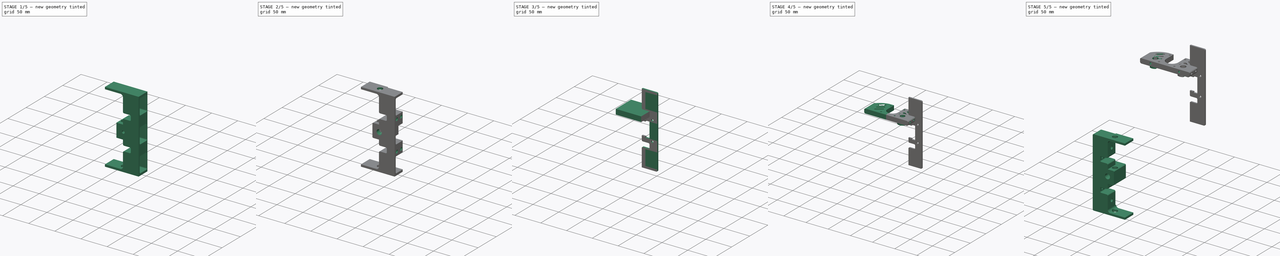
[diagram: build sequence overview — one tinted view per stage of 5, left to right]
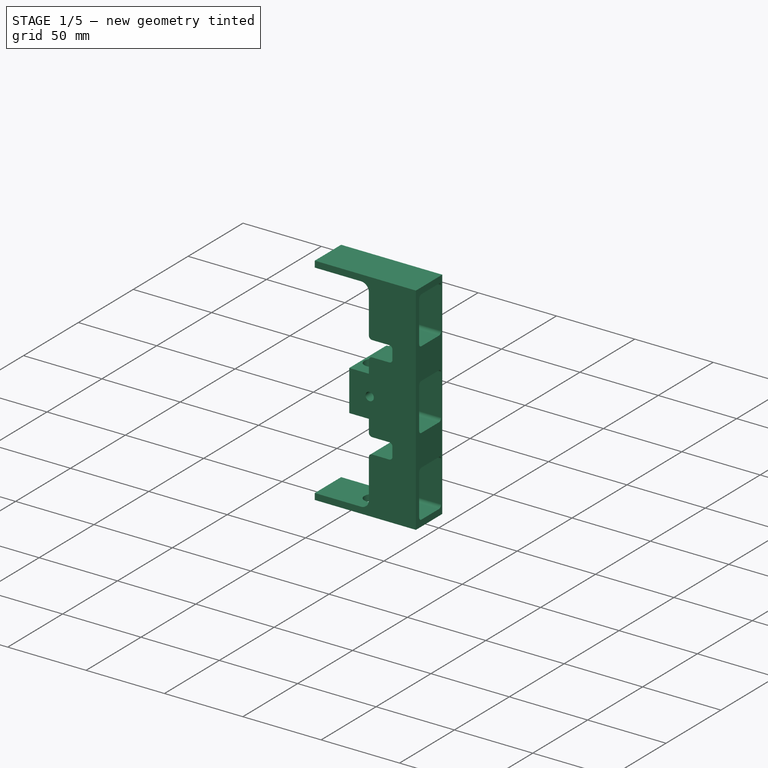
[diagram: stage 1 of 5 — iso view after this stage's code; geometry added in this stage tinted green]
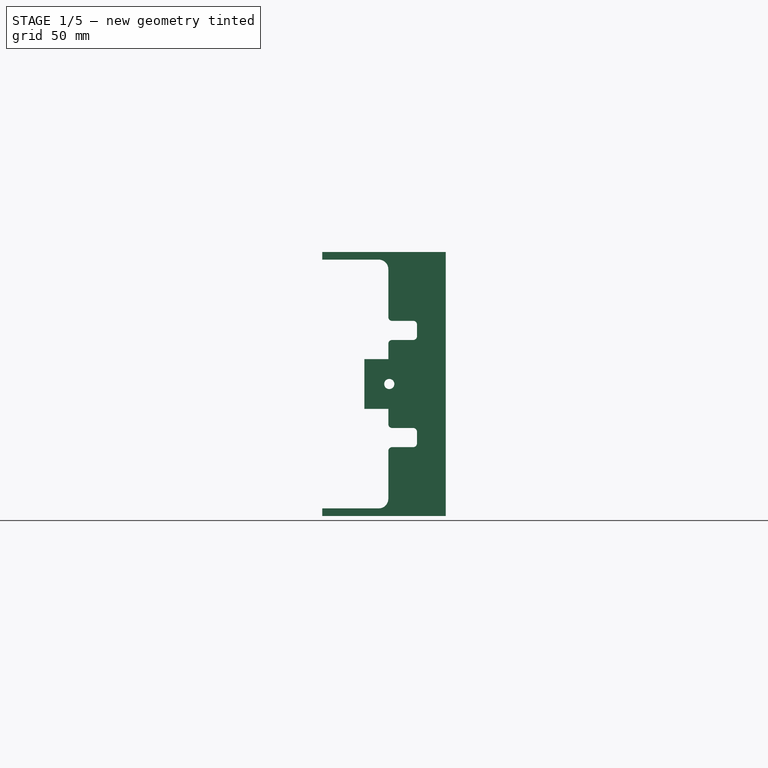
[diagram: stage 1 of 5 — front view after this stage's code; geometry added in this stage tinted green]
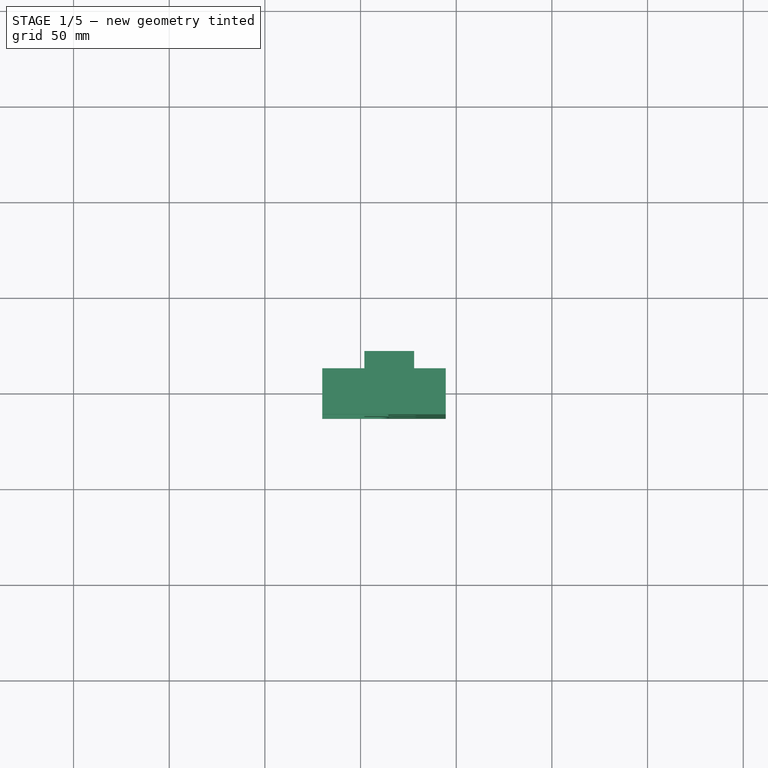
[diagram: stage 1 of 5 — top view after this stage's code; geometry added in this stage tinted green]
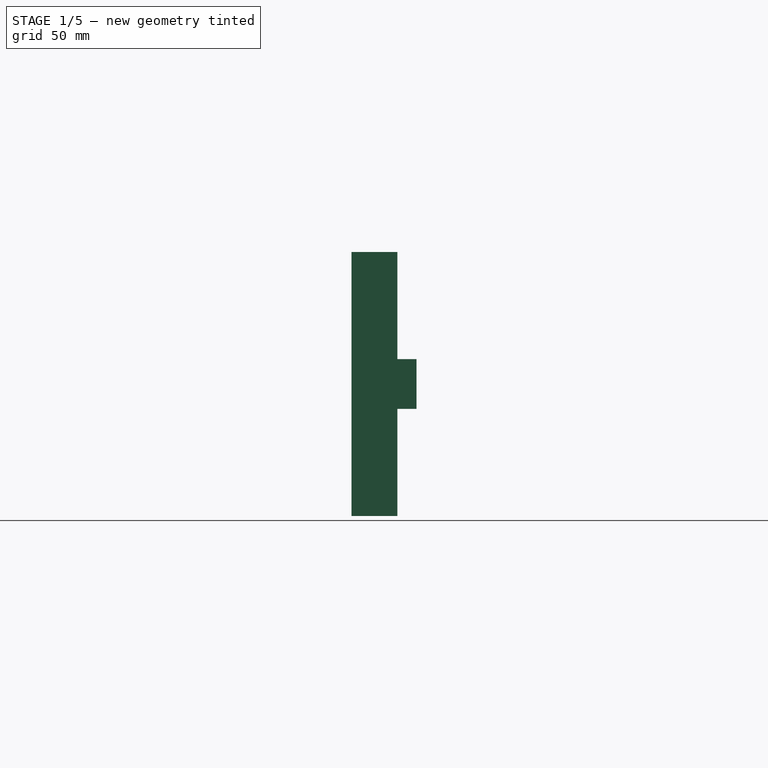
[diagram: stage 1 of 5 — right view after this stage's code; geometry added in this stage tinted green]
FCSTD DOCUMENT  (FreeCAD 0.20R29177 (Git))
Label: AP_004c_LateralWagon
License: All rights reserved
LicenseURL: http://en.wikipedia.org/wiki/All_rights_reserved
objects: Sketcher::SketchObject×22, PartDesign::Pocket×18, PartDesign::Pad×9, PartDesign::Fillet×4, PartDesign::ShapeBinder×4, PartDesign::Mirrored×3, PartDesign::Body×3, PartDesign::Plane×2, PartDesign::Hole×2, PartDesign::SubShapeBinder×1, PartDesign::Chamfer×1, Part::Mirroring×1
note: 104 computed .brp shape members not serialized (recipe doc carries the construction recipe); baked Part::Feature solids carry a one-line shape summary decoded from their .brp

FEATURE [PartDesign::SubShapeBinder] Binder
  BindCopyOnChange = 0
  BindMode = 2
  ClaimChildren = false
  Context = -> Body [Binder.]
  Fuse = false
  MakeFace = true
  OffsetFill = false
  OffsetIntersection = false
  OffsetJoinType = 0
  OffsetOpenResult = false
  PartialLoad = false
  Refine = true
  Relative = true
  _Version = 2
FEATURE [Sketcher::SketchObject] Sketch
  ExternalGeometry = -> [Binder]
  FullyConstrained = false
  MapMode = 5
  Placement = pos=(0,-10,0) rot=(1,0,0;1.5708rad)
  Support = -> [Binder]
  sketch-geometry (1):
    g0: LineSegment StartX=79.991 StartY=228.603 StartZ=0 EndX=79.991 EndY=327.275 EndZ=0
  constraints (1):
    c: Symmetric(g-6,g-3,g0)
FEATURE [PartDesign::Plane] DatumPlane
  AttachmentOffset = pos=(0,0,0) rot=(0,1,0;1.5708rad)
  Length = 396.166
  MapMode = 45
  Placement = pos=(79.991,-10,277.939) rot=(0,1,0;1.5708rad)
  ResizeMode = 0
  Support = -> [Sketch]
  Width = 77.1662
FEATURE [Sketcher::SketchObject] Sketch001
  AttachmentOffset = pos=(0,0,3) rot=(0,0,1;0rad)
  ExternalGeometry = -> [Binder]
  FullyConstrained = true
  MapMode = 5
  Placement = pos=(0,-13,7e-16) rot=(1,0,0;1.5708rad)
  Support = -> [Binder]
  sketch-geometry (9):
    g0: LineSegment StartX=114.5 StartY=344 StartZ=0 EndX=144.5 EndY=344 EndZ=0
    g1: LineSegment StartX=144.5 StartY=344 StartZ=0 EndX=144.5 EndY=206 EndZ=0
    g2: LineSegment StartX=144.5 StartY=206 StartZ=0 EndX=114.5 EndY=206 EndZ=0
    g3: LineSegment StartX=114.5 StartY=206 StartZ=0 EndX=114.5 EndY=262 EndZ=0
    g4: LineSegment StartX=114.5 StartY=288 StartZ=0 EndX=102 EndY=288 EndZ=0
    g5: LineSegment StartX=102 StartY=288 StartZ=0 EndX=102 EndY=262 EndZ=0
    g6: LineSegment StartX=102 StartY=262 StartZ=0 EndX=114.5 EndY=262 EndZ=0
    g7: LineSegment StartX=114.5 StartY=288 StartZ=0 EndX=114.5 EndY=344 EndZ=0
    g8: Circle CenterX=115 CenterY=275 CenterZ=0 NormalX=0 NormalY=0 NormalZ=1 AngleXU=0 Radius=2.65
  constraints (26):
    c: Coincident(g0,g1)
    c: Coincident(g1,g2)
    c: Coincident(g2,g3)
    c: Coincident(g7,g0)
    c: Horizontal(g0)
    c: Horizontal(g2)
    c: Vertical(g1)
    c: Vertical(g3)
    c: Vertical(g-3,g0)
    c: DistanceY(g2,g-5) = 4
    c: DistanceY(g-6,g0) = 4
    c: DistanceX(g0,g0) = 30
    c: Coincident(g4,g5)
    c: Coincident(g5,g6)
    c: Horizontal(g4)
    c: Horizontal(g6)
    c: Vertical(g5)
    c: Distance(g-7,g5) = 3
    c: Distance(g-8,g4) = 3
    c: Distance(g-9,g6) = 3
    c: Coincident(g7,g4)
    c: Vertical(g7)
    c: Coincident(g6,g3)
    c: Equal(g2,g0)
    c: Coincident(g8,g-11)
    c: Radius(g8) = 2.65
FEATURE [PartDesign::Pad] Pad
  Direction = (0,-1,2e-16)
  Length = 24
  Length2 = 100
  Profile = -> Sketch001
  Reversed = true
  Type = 0
FEATURE [Sketcher::SketchObject] Sketch002
  ExternalGeometry = -> [DatumPlane,Binder,Pad]
  FullyConstrained = true
  MapMode = 5
  Placement = pos=(0,-13,2.9e-15) rot=(1,0,0;1.5708rad)
  Support = -> [Pad]
  sketch-geometry (8):
    g0: LineSegment StartX=114.5 StartY=344 StartZ=0 EndX=79.991 EndY=344 EndZ=0
    g1: LineSegment StartX=79.991 StartY=344 StartZ=0 EndX=79.991 EndY=340 EndZ=0
    g2: LineSegment StartX=79.991 StartY=340 StartZ=0 EndX=114.5 EndY=340 EndZ=0
    g3: LineSegment StartX=114.5 StartY=340 StartZ=0 EndX=114.5 EndY=344 EndZ=0
    g4: LineSegment StartX=114.5 StartY=206 StartZ=0 EndX=79.991 EndY=206 EndZ=0
    g5: LineSegment StartX=79.991 StartY=206 StartZ=0 EndX=79.991 EndY=210 EndZ=0
    g6: LineSegment StartX=79.991 StartY=210 StartZ=0 EndX=114.5 EndY=210 EndZ=0
    g7: LineSegment StartX=114.5 StartY=210 StartZ=0 EndX=114.5 EndY=206 EndZ=0
  constraints (22):
    c: Coincident(g0,g1)
    c: Coincident(g1,g2)
    c: Coincident(g2,g3)
    c: Coincident(g3,g0)
    c: Horizontal(g0)
    c: Horizontal(g2)
    c: Vertical(g1)
    c: Vertical(g3)
    c: Coincident(g0,g-6)
    c: PointOnObject(g1,g-4)
    c: PointOnObject(g1,g-3)
    c: Coincident(g4,g5)
    c: Coincident(g5,g6)
    c: Coincident(g6,g7)
    c: Coincident(g7,g4)
    c: Horizontal(g4)
    c: Horizontal(g6)
    c: Vertical(g5)
    c: Vertical(g7)
    c: Coincident(g4,g-8)
    c: PointOnObject(g5,g-7)
    c: PointOnObject(g5,g-3)
FEATURE [PartDesign::Pad] Pad001
  BaseFeature = -> Pad
  Direction = (0,-1,2e-16)
  Length = 24
  Length2 = 100
  Profile = -> Sketch002
  Reversed = true
  Type = 0
FEATURE [Sketcher::SketchObject] Sketch003
  ExternalGeometry = -> [Binder,DatumPlane,Pad001]
  FullyConstrained = true
  MapMode = 5
  Placement = pos=(0,-13,2.9e-15) rot=(1,0,0;1.5708rad)
  Support = -> [Pad001]
  sketch-geometry (8):
    g0: LineSegment StartX=79.991 StartY=242 StartZ=0 EndX=129.5 EndY=242 EndZ=0
    g1: LineSegment StartX=129.5 StartY=242 StartZ=0 EndX=129.5 EndY=252 EndZ=0
    g2: LineSegment StartX=129.5 StartY=252 StartZ=0 EndX=79.991 EndY=252 EndZ=0
    g3: LineSegment StartX=79.991 StartY=252 StartZ=0 EndX=79.991 EndY=242 EndZ=0
    g4: LineSegment StartX=79.991 StartY=308 StartZ=0 EndX=129.5 EndY=308 EndZ=0
    g5: LineSegment StartX=129.5 StartY=308 StartZ=0 EndX=129.5 EndY=298 EndZ=0
    g6: LineSegment StartX=129.5 StartY=298 StartZ=0 EndX=79.991 EndY=298 EndZ=0
    g7: LineSegment StartX=79.991 StartY=298 StartZ=0 EndX=79.991 EndY=308 EndZ=0
  constraints (24):
    c: Coincident(g0,g1)
    c: Coincident(g1,g2)
    c: Coincident(g2,g3)
    c: Coincident(g3,g0)
    c: Horizontal(g0)
    c: Horizontal(g2)
    c: Vertical(g1)
    c: Vertical(g3)
    c: PointOnObject(g0,g-5)
    c: Coincident(g4,g5)
    c: Coincident(g5,g6)
    c: Coincident(g6,g7)
    c: Coincident(g7,g4)
    c: Horizontal(g4)
    c: Horizontal(g6)
    c: Vertical(g5)
    c: Vertical(g7)
    c: PointOnObject(g4,g-3)
    c: PointOnObject(g4,g3)
    c: Equal(g3,g7)
    c: DistanceY(g5,g5) = 10
    c: PointOnObject(g0,g-4)
    c: Vertical(g0,g5)
    c: DistanceX(g-7,g5) = 15
FEATURE [PartDesign::Pocket] Pocket
  BaseFeature = -> Pad001
  Direction = (1,1,1)
  Length = 5
  Length2 = 100
  Profile = -> Sketch003
  Type = 1
FEATURE [PartDesign::Pocket] Pocket001
  BaseFeature = -> Pocket
  Direction = (1,1,1)
  Length = 5
  Length2 = 100
  Profile = -> Binder [Face11,Face19,Face8]
  Type = 1
FEATURE [PartDesign::Fillet] Fillet
  Base = -> Pocket001 [Edge48,Edge47,Edge46,Edge45,Edge2,Edge24,Edge86,Edge85]
  BaseFeature = -> Pocket001
  Radius = 2
  SupportTransform = false
  UseAllEdges = false
FEATURE [PartDesign::Fillet] Fillet001
  Base = -> Fillet [Edge71,Edge107]
  BaseFeature = -> Fillet
  Radius = 5
  SupportTransform = false
  UseAllEdges = false
FEATURE [Sketcher::SketchObject] Sketch004
  ExternalGeometry = -> [Fillet001]
  FullyConstrained = true
  MapMode = 5
  Placement = pos=(0,11,-2.4e-15) rot=(0,0.707107,0.707107;3.14159rad)
  Support = -> [Fillet001]
  sketch-geometry (5):
    g0: LineSegment StartX=-102 StartY=262 StartZ=0 EndX=-128 EndY=262 EndZ=0
    g1: LineSegment StartX=-128 StartY=262 StartZ=0 EndX=-128 EndY=288 EndZ=0
    g2: LineSegment StartX=-128 StartY=288 StartZ=0 EndX=-102 EndY=288 EndZ=0
    g3: LineSegment StartX=-102 StartY=288 StartZ=0 EndX=-102 EndY=262 EndZ=0
    g4: Circle CenterX=-115 CenterY=275 CenterZ=0 NormalX=0 NormalY=0 NormalZ=1 AngleXU=0 Radius=2.65
  constraints (12):
    c: Coincident(g0,g1)
    c: Coincident(g1,g2)
    c: Coincident(g2,g3)
    c: Coincident(g3,g0)
    c: Horizontal(g0)
    c: Horizontal(g2)
    c: Vertical(g1)
    c: Coincident(g0,g-3)
    c: Coincident(g2,g-3)
    c: Equal(g2,g1)
    c: Coincident(g4,g-4)
    c: Equal(g-4,g4)
FEATURE [PartDesign::Pad] Pad002
  BaseFeature = -> Fillet001
  Direction = (0,1,-2e-16)
  Length = 10
  Length2 = 100
  Profile = -> Sketch004
  Type = 0
FEATURE [Sketcher::SketchObject] Sketch005
  ExternalGeometry = -> [Pad002]
  FullyConstrained = true
  MapMode = 5
  Placement = pos=(0,6.34e-14,288) rot=(0,0,1;0rad)
  Support = -> [Pad002]
  sketch-geometry (1):
    g0: Circle CenterX=108.25 CenterY=-1 CenterZ=0 NormalX=0 NormalY=0 NormalZ=1 AngleXU=0 Radius=5
  constraints (2):
    c: Symmetric(g-3,g-4,g0)
    c: Radius(g0) = 5
FEATURE [PartDesign::Pocket] Pocket002
  BaseFeature = -> Pad002
  Direction = (1,1,1)
  Length = 5
  Length2 = 100
  Profile = -> Sketch005
  Type = 1
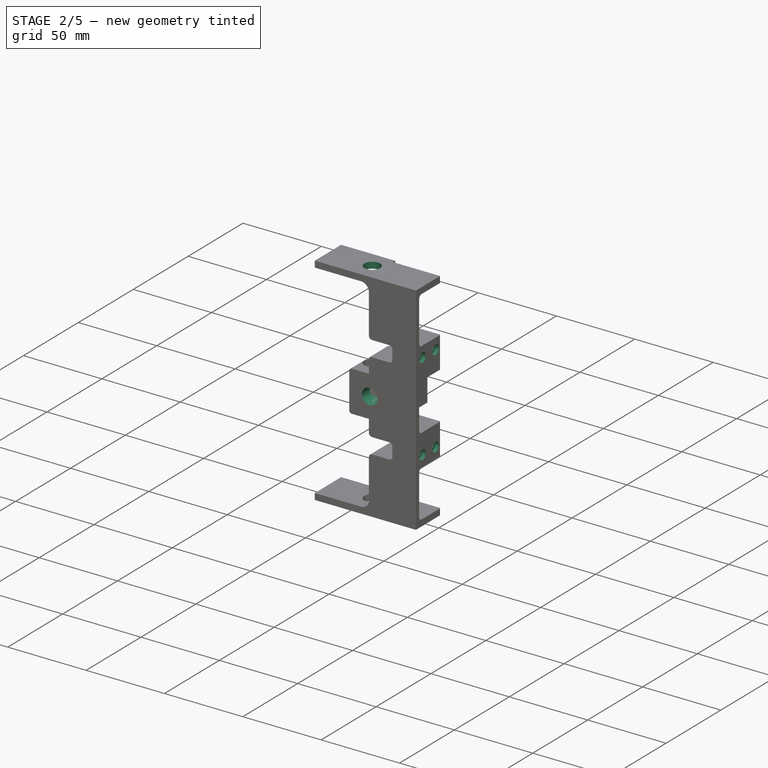
[diagram: stage 2 of 5 — iso view after this stage's code; geometry added in this stage tinted green]
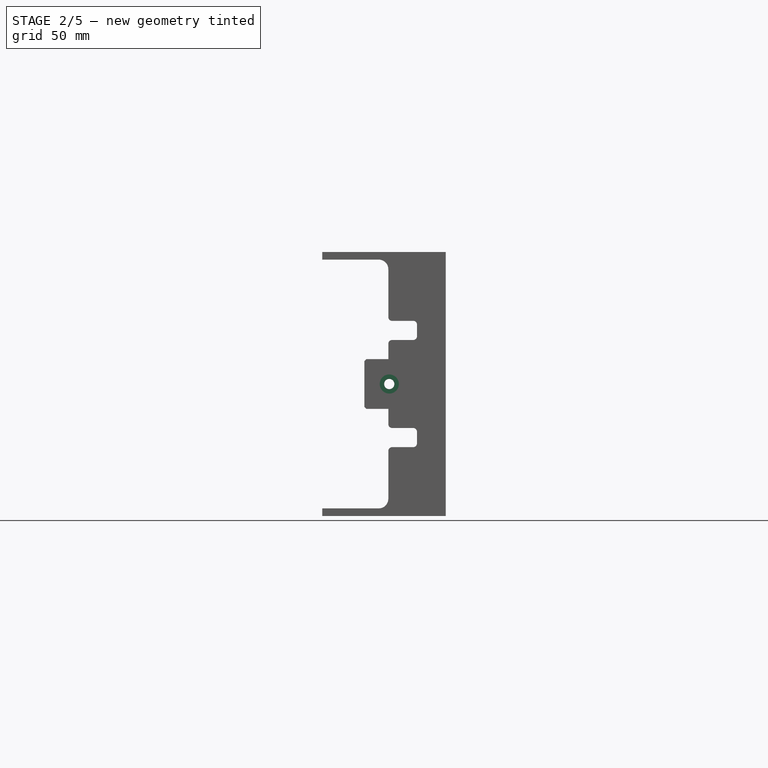
[diagram: stage 2 of 5 — front view after this stage's code; geometry added in this stage tinted green]
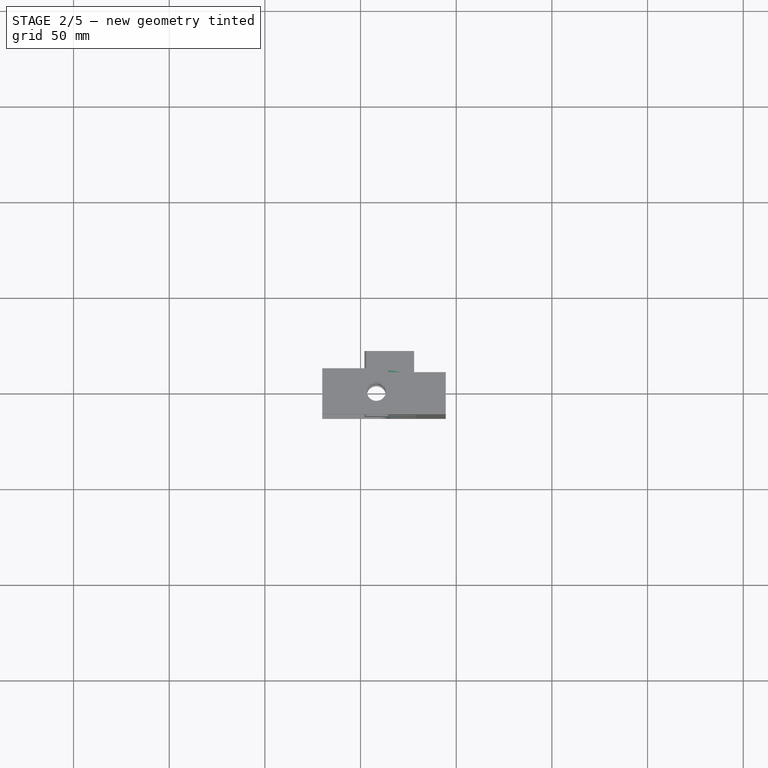
[diagram: stage 2 of 5 — top view after this stage's code; geometry added in this stage tinted green]
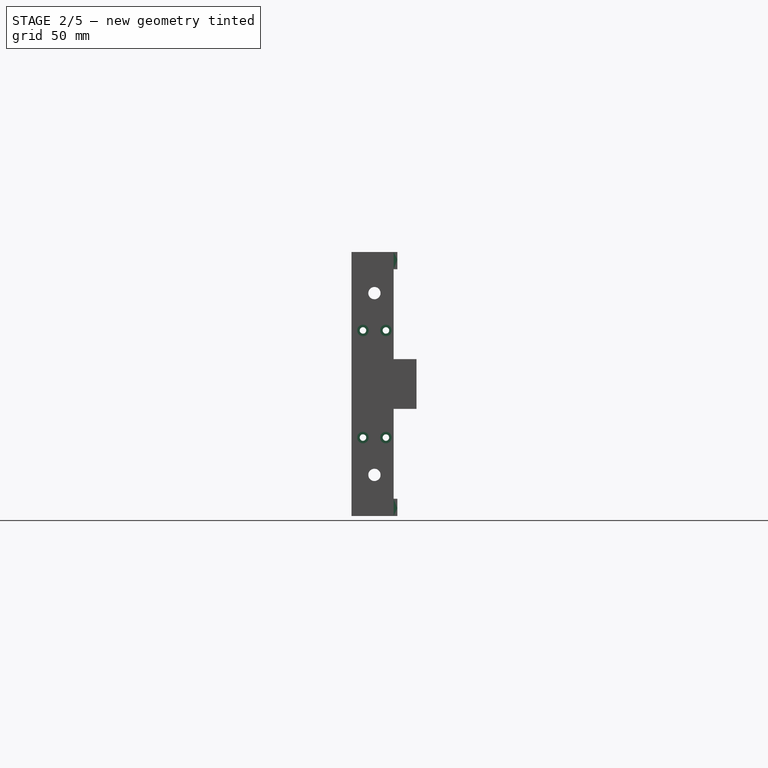
[diagram: stage 2 of 5 — right view after this stage's code; geometry added in this stage tinted green]
FEATURE [PartDesign::Pocket] Pocket003
  BaseFeature = -> Pocket002
  Direction = (1,1,1)
  Length = 5
  Length2 = 100
  Profile = -> Sketch005
  Reversed = true
  Type = 1
FEATURE [Sketcher::SketchObject] Sketch006
  ExternalGeometry = -> [Pocket003]
  FullyConstrained = false
  MapMode = 5
  Placement = pos=(0,-13,2.9e-15) rot=(1,0,0;1.5708rad)
  Support = -> [Pocket003]
  sketch-geometry (1):
    g0: Circle CenterX=115 CenterY=275 CenterZ=0 NormalX=0 NormalY=0 NormalZ=1 AngleXU=0 Radius=3.77396
  constraints (1):
    c: Coincident(g0,g-3)
FEATURE [PartDesign::Hole] Hole
  BaseFeature = -> Pocket003
  CustomThreadClearance = 0
  Depth = 25
  DepthType = 0
  Diameter = 5.5
  DrillForDepth = false
  DrillPoint = 1
  DrillPointAngle = 118
  HoleCutCountersinkAngle = 90
  HoleCutCustomValues = false
  HoleCutDepth = 4
  HoleCutDiameter = 10
  HoleCutType = 6
  ModelThread = false
  Profile = -> Sketch006
  Tapered = false
  TaperedAngle = 90
  ThreadClass = 0
  ThreadDepth = 23.5
  ThreadDepthType = 0
  ThreadDirection = 0
  ThreadFit = 0
  ThreadSize = 13
  ThreadType = 1
  Threaded = false
  UseCustomThreadClearance = false
FEATURE [PartDesign::Pocket] Pocket004
  BaseFeature = -> Hole
  Direction = (1,1,1)
  Length = 19
  Length2 = 100
  Profile = -> Hole [Face66]
  Type = 0
FEATURE [Sketcher::SketchObject] Sketch007
  ExternalGeometry = -> [Pocket004]
  FullyConstrained = true
  MapMode = 5
  Placement = pos=(114.5,0,0) rot=(0.57735,-0.57735,-0.57735;2.0944rad)
  Support = -> [Pocket004]
  sketch-geometry (2):
    g0: Circle CenterX=1 CenterY=322.5 CenterZ=0 NormalX=0 NormalY=0 NormalZ=1 AngleXU=0 Radius=3.2
    g1: Circle CenterX=1 CenterY=227.5 CenterZ=0 NormalX=0 NormalY=0 NormalZ=1 AngleXU=0 Radius=3.2
  constraints (4):
    c: Equal(g1,g0)
    c: Radius(g0) = 3.2
    c: Symmetric(g-3,g-4,g0)
    c: Symmetric(g-5,g-6,g1)
FEATURE [PartDesign::Pocket] Pocket005
  BaseFeature = -> Pocket004
  Direction = (1,1,1)
  Length = 5
  Length2 = 100
  Profile = -> Sketch007
  Type = 1
FEATURE [Sketcher::SketchObject] Sketch008
  ExternalGeometry = -> [Pocket005]
  FullyConstrained = false
  MapMode = 5
  Placement = pos=(144.5,0,0) rot=(0.57735,0.57735,0.57735;2.0944rad)
  Support = -> [Pocket005]
  sketch-geometry (6):
    g0: Circle CenterX=-7 CenterY=303 CenterZ=0 NormalX=0 NormalY=0 NormalZ=1 AngleXU=0 Radius=1.66566
    g1: Circle CenterX=5 CenterY=303 CenterZ=0 NormalX=0 NormalY=0 NormalZ=1 AngleXU=0 Radius=1.31518
    g2: Circle CenterX=-7 CenterY=247 CenterZ=0 NormalX=0 NormalY=0 NormalZ=1 AngleXU=0 Radius=1.65536
    g3: Circle CenterX=5 CenterY=247 CenterZ=0 NormalX=0 NormalY=0 NormalZ=1 AngleXU=0 Radius=1.87374
    g4: GeomPoint X=-1 Y=303 Z=0
    g5: GeomPoint X=-1 Y=247 Z=0
  constraints (9):
    c: Symmetric(g-5,g-6,g4)
    c: Symmetric(g0,g1,g4)
    c: Horizontal(g0,g1)
    c: DistanceX(g0,g1) = 12
    c: Vertical(g2,g0)
    c: Vertical(g3,g1)
    c: Symmetric(g-3,g-4,g5)
    c: Horizontal(g2,g3)
    c: Horizontal(g3,g5)
FEATURE [PartDesign::Hole] Hole001
  BaseFeature = -> Pocket005
  CustomThreadClearance = 0
  Depth = 25
  DepthType = 0
  Diameter = 3.4
  DrillForDepth = false
  DrillPoint = 1
  DrillPointAngle = 118
  HoleCutCountersinkAngle = 90
  HoleCutCustomValues = false
  HoleCutDepth = 2.4
  HoleCutDiameter = 6
  HoleCutType = 6
  ModelThread = false
  Profile = -> Sketch008
  Tapered = false
  TaperedAngle = 90
  ThreadClass = 0
  ThreadDepth = 23.5
  ThreadDepthType = 0
  ThreadDirection = 0
  ThreadFit = 0
  ThreadSize = 9
  ThreadType = 1
  Threaded = false
  UseCustomThreadClearance = false
FEATURE [PartDesign::Chamfer] Chamfer
  Angle = 45
  Base = -> Hole001 [Edge106,Edge101]
  BaseFeature = -> Hole001
  ChamferType = 0
  FlipDirection = false
  Size = 1
  Size2 = 1
  SupportTransform = false
  UseAllEdges = false
FEATURE [PartDesign::Pocket] Pocket006
  BaseFeature = -> Chamfer
  Direction = (1,1,1)
  Length = 2
  Length2 = 100
  Profile = -> Chamfer [Face34]
  Type = 0
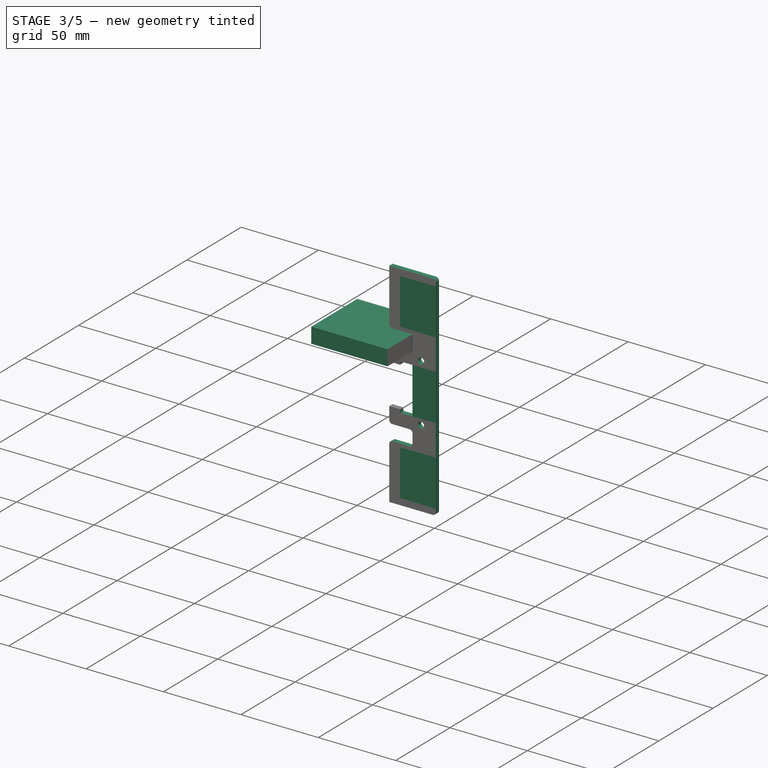
[diagram: stage 3 of 5 — iso view after this stage's code; geometry added in this stage tinted green]
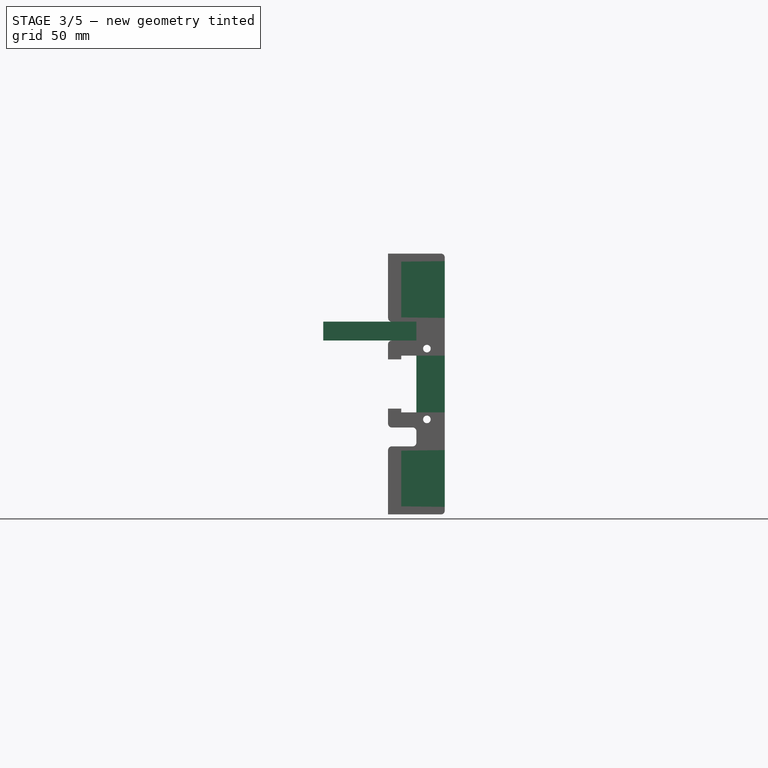
[diagram: stage 3 of 5 — front view after this stage's code; geometry added in this stage tinted green]
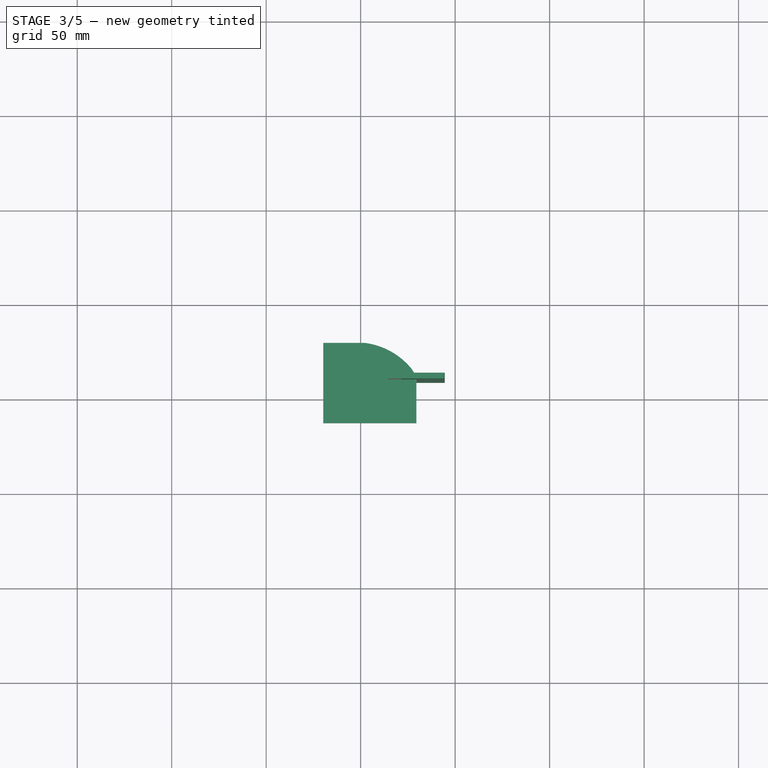
[diagram: stage 3 of 5 — top view after this stage's code; geometry added in this stage tinted green]
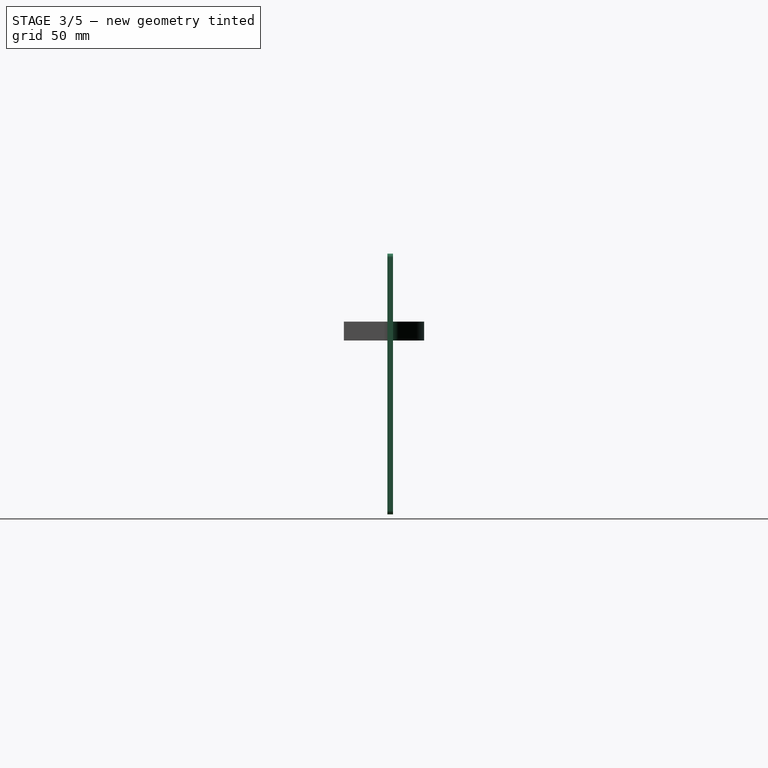
[diagram: stage 3 of 5 — right view after this stage's code; geometry added in this stage tinted green]
FEATURE [PartDesign::Fillet] Fillet002
  Base = -> Pocket006 [Edge121,Edge92]
  BaseFeature = -> Pocket006
  Radius = 2
  SupportTransform = false
  UseAllEdges = false
FEATURE [Sketcher::SketchObject] Sketch009
  ExternalGeometry = -> [Fillet002]
  FullyConstrained = false
  MapMode = 5
  Placement = pos=(0,9,-2e-15) rot=(0,0.707107,0.707107;3.14159rad)
  Support = -> [Fillet002]
  sketch-geometry (2):
    g0: Circle CenterX=-135.057 CenterY=256.268 CenterZ=0 NormalX=0 NormalY=0 NormalZ=1 AngleXU=0 Radius=2
    g1: Circle CenterX=-135.057 CenterY=293.732 CenterZ=0 NormalX=0 NormalY=0 NormalZ=1 AngleXU=0 Radius=2
  constraints (5):
    c: Vertical(g1,g0)
    c: Distance(g1,g-3) = 4
    c: Distance(g0,g-4) = 4
    c: Equal(g0,g1)
    c: Radius(g0) = 2
FEATURE [PartDesign::Pocket] Pocket007
  BaseFeature = -> Fillet002
  Direction = (1,1,1)
  Length = 8
  Length2 = 100
  Profile = -> Sketch009
  Type = 0
FEATURE [PartDesign::ShapeBinder] ShapeBinder
  Support = -> [Binder]
  TraceSupport = false
FEATURE [PartDesign::ShapeBinder] ShapeBinder002
  Support = -> [Pocket007]
  TraceSupport = false
FEATURE [Sketcher::SketchObject] Sketch010
  ExternalGeometry = -> [ShapeBinder002,ShapeBinder]
  FullyConstrained = false
  MapMode = 5
  Placement = pos=(0,0,308) rot=(1,0,0;3.14159rad)
  Support = -> [ShapeBinder]
  sketch-geometry (6):
    g0: LineSegment StartX=80.2048 StartY=-28.418 StartZ=0 EndX=80.2048 EndY=14 EndZ=0
    g1: LineSegment StartX=80.2048 StartY=14 StartZ=0 EndX=129.5 EndY=14 EndZ=0
    g2: LineSegment StartX=129.5 StartY=14 StartZ=0 EndX=129.5 EndY=-7.03123 EndZ=0
    g3: LineSegment StartX=80.2048 StartY=-28.418 StartZ=0 EndX=102.009 EndY=-28.418 EndZ=0
    g4: ArcOfCircle CenterX=97.4158 CenterY=9.44444 CenterZ=0 NormalX=0 NormalY=0 NormalZ=1 AngleXU=0 Radius=38.14 StartAngle=4.83311 EndAngle=5.57872
    g5: ArcOfCircle CenterX=116.8 CenterY=-7.03123 CenterZ=0 NormalX=0 NormalY=0 NormalZ=1 AngleXU=0 Radius=12.7 StartAngle=5.57872 EndAngle=6.28319
  constraints (15):
    c: PointOnObject(g0,g-8)
    c: PointOnObject(g0,g-9)
    c: Vertical(g0)
    c: Horizontal(g1)
    c: Coincident(g1,g2)
    c: Vertical(g2)
    c: Coincident(g0,g1)
    c: Vertical(g2,g-3)
    c: Coincident(g3,g0)
    c: Horizontal(g3)
    c: Coincident(g4,g3)
    c: Tangent(g4,g5) = -1.5708
    c: Tangent(g2,g5) = 1.5708
    c: Radius(g4) = 38.14
    c: Radius(g5) = 12.7
FEATURE [PartDesign::Pad] Pad003
  Direction = (0,0,-1)
  Length = 10
  Length2 = 100
  Profile = -> Sketch010
  Type = 0
FEATURE [Sketcher::SketchObject] Sketch015
  ExternalGeometry = -> [Pocket007]
  FullyConstrained = true
  MapMode = 5
  Placement = pos=(121.5,0,0) rot=(0.57735,0.57735,0.57735;2.0944rad)
  Support = -> [Pocket007]
  sketch-geometry (30):
    g0: ArcOfCircle CenterX=8 CenterY=312 CenterZ=0 NormalX=0 NormalY=0 NormalZ=1 AngleXU=0 Radius=2.25 StartAngle=4.71239 EndAngle=6.28319
    g1: LineSegment StartX=8 StartY=309.75 StartZ=0 EndX=-8 EndY=309.75 EndZ=0
    g2: ArcOfCircle CenterX=-8 CenterY=312 CenterZ=0 NormalX=0 NormalY=0 NormalZ=1 AngleXU=0 Radius=2.25 StartAngle=3.14159 EndAngle=4.71239
    g3: LineSegment StartX=-10.25 StartY=312 StartZ=0 EndX=-10.25 EndY=338 EndZ=0
    g4: ArcOfCircle CenterX=-8 CenterY=338 CenterZ=0 NormalX=0 NormalY=0 NormalZ=1 AngleXU=0 Radius=2.25 StartAngle=1.5708 EndAngle=3.14159
    g5: LineSegment StartX=-8 StartY=340.25 StartZ=0 EndX=8 EndY=340.25 EndZ=0
    g6: ArcOfCircle CenterX=8 CenterY=338 CenterZ=0 NormalX=0 NormalY=0 NormalZ=1 AngleXU=0 Radius=2.25 StartAngle=-4.4e-15 EndAngle=1.5708
    g7: LineSegment StartX=10.25 StartY=338 StartZ=0 EndX=10.25 EndY=312 EndZ=0
    g8: GeomPoint X=10.25 Y=309.75 Z=0
    g9: GeomPoint X=-10.25 Y=340.25 Z=0
    g10: ArcOfCircle CenterX=-8 CenterY=288 CenterZ=0 NormalX=0 NormalY=0 NormalZ=1 AngleXU=0 Radius=2.25 StartAngle=1.5708 EndAngle=3.14159
    g11: LineSegment StartX=-8 StartY=290.25 StartZ=0 EndX=8 EndY=290.25 EndZ=0
    g12: ArcOfCircle CenterX=8 CenterY=288 CenterZ=0 NormalX=0 NormalY=0 NormalZ=1 AngleXU=0 Radius=2.25 StartAngle=-1.8e-15 EndAngle=1.5708
    g13: LineSegment StartX=10.25 StartY=288 StartZ=0 EndX=10.25 EndY=262 EndZ=0
    g14: ArcOfCircle CenterX=8 CenterY=262 CenterZ=0 NormalX=0 NormalY=0 NormalZ=1 AngleXU=0 Radius=2.25 StartAngle=4.71239 EndAngle=6.28319
    g15: LineSegment StartX=8 StartY=259.75 StartZ=0 EndX=-8 EndY=259.75 EndZ=0
    g16: ArcOfCircle CenterX=-8 CenterY=262 CenterZ=0 NormalX=0 NormalY=0 NormalZ=1 AngleXU=0 Radius=2.25 StartAngle=3.14159 EndAngle=4.71239
    g17: LineSegment StartX=-10.25 StartY=262 StartZ=0 EndX=-10.25 EndY=288 EndZ=0
    g18: GeomPoint X=-10.25 Y=290.25 Z=0
    g19: GeomPoint X=10.25 Y=259.75 Z=0
    g20: ArcOfCircle CenterX=-8 CenterY=238 CenterZ=0 NormalX=0 NormalY=0 NormalZ=1 AngleXU=0 Radius=2.25 StartAngle=1.5708 EndAngle=3.14159
    g21: LineSegment StartX=-8 StartY=240.25 StartZ=0 EndX=8 EndY=240.25 EndZ=0
    g22: ArcOfCircle CenterX=8 CenterY=238 CenterZ=0 NormalX=0 NormalY=0 NormalZ=1 AngleXU=0 Radius=2.25 StartAngle=-6.2e-15 EndAngle=1.5708
    g23: LineSegment StartX=10.25 StartY=238 StartZ=0 EndX=10.25 EndY=212 EndZ=0
    g24: ArcOfCircle CenterX=8 CenterY=212 CenterZ=0 NormalX=0 NormalY=0 NormalZ=1 AngleXU=0 Radius=2.25 StartAngle=4.71239 EndAngle=6.28319
    g25: LineSegment StartX=8 StartY=209.75 StartZ=0 EndX=-8 EndY=209.75 EndZ=0
    g26: ArcOfCircle CenterX=-8 CenterY=212 CenterZ=0 NormalX=0 NormalY=0 NormalZ=1 AngleXU=0 Radius=2.25 StartAngle=3.14159 EndAngle=4.71239
    g27: LineSegment StartX=-10.25 StartY=212 StartZ=0 EndX=-10.25 EndY=238 EndZ=0
    g28: GeomPoint X=-10.25 Y=240.25 Z=0
    g29: GeomPoint X=10.25 Y=209.75 Z=0
  constraints (71):
    c: Tangent(g0,g1) = 1.5708
    c: Tangent(g1,g2) = 1.5708
    c: Tangent(g2,g3) = 1.5708
    c: Tangent(g3,g4) = 1.5708
    c: Tangent(g4,g5) = 1.5708
    c: Tangent(g5,g6) = 1.5708
    c: Tangent(g6,g7) = 1.5708
    c: Tangent(g7,g0) = 1.5708
    c: Horizontal(g1)
    c: Horizontal(g5)
    c: Vertical(g3)
    c: Vertical(g7)
    c: Equal(g0,g2)
    c: Equal(g2,g4)
    c: Equal(g4,g6)
    c: PointOnObject(g8,g1)
    c: PointOnObject(g8,g7)
    c: PointOnObject(g9,g3)
    c: PointOnObject(g9,g5)
    c: Coincident(g2,g-11)
    c: Distance(g-11,g1) = 0.25
    c: Distance(g-12,g5) = 0.25
    c: Vertical(g-12,g5)
    c: Tangent(g10,g11) = 1.5708
    c: Tangent(g11,g12) = 1.5708
    c: Tangent(g12,g13) = 1.5708
    c: Tangent(g13,g14) = 1.5708
    c: Tangent(g14,g15) = 1.5708
    c: Tangent(g15,g16) = 1.5708
    c: Tangent(g16,g17) = 1.5708
    c: Tangent(g17,g10) = 1.5708
    c: Horizontal(g11)
    c: Horizontal(g15)
    c: Vertical(g13)
    c: Vertical(g17)
    c: Equal(g10,g12)
    c: Equal(g12,g14)
    c: Equal(g14,g16)
    c: PointOnObject(g18,g11)
    c: PointOnObject(g18,g17)
    c: PointOnObject(g19,g13)
    c: PointOnObject(g19,g15)
    c: Distance(g10,g-5) = 0.25
    c: Vertical(g10,g-5)
    c: Horizontal(g10,g-7)
    c: Distance(g-6,g15) = 0.25
    c: Vertical(g12,g-5)
    c: Tangent(g20,g21) = 1.5708
    c: Tangent(g21,g22) = 1.5708
    c: Tangent(g22,g23) = 1.5708
    c: Tangent(g23,g24) = 1.5708
    c: Tangent(g24,g25) = 1.5708
    c: Tangent(g25,g26) = 1.5708
    c: Tangent(g26,g27) = 1.5708
    c: Tangent(g27,g20) = 1.5708
    c: Horizontal(g21)
    c: Horizontal(g25)
    c: Vertical(g23)
    c: Vertical(g27)
    c: Equal(g20,g22)
    c: Equal(g22,g24)
    c: Equal(g24,g26)
    c: PointOnObject(g28,g21)
    c: PointOnObject(g28,g27)
    c: PointOnObject(g29,g23)
    c: PointOnObject(g29,g25)
    c: Vertical(g25,g-8)
    c: Distance(g-8,g25) = 0.25
    c: Horizontal(g26,g-10)
    c: Distance(g-9,g21) = 0.25
    c: Vertical(g21,g-9)
FEATURE [PartDesign::Pocket] Pocket012
  BaseFeature = -> Pocket007
  Direction = (1,1,1)
  Length = 5
  Length2 = 100
  Profile = -> Sketch015
  Reversed = true
  Type = 1
FEATURE [PartDesign::Body] Body001
  Group = -> [ShapeBinder,ShapeBinder002,Sketch010,Pad003,Sketch011,Pocket008,Sketch012,Pocket009,Sketch013,Pocket010,Sketch014,Pocket011,Mirrored,ShapeBinder003,DatumPlane001,Sketch016,Pad004,Pocket013,Sketch017,Pocket014,Mirrored001,Pocket015,Sketch018,Pocket016,Sketch019,Pocket017,Mirrored002,Fillet003]
  Origin = -> Origin001
  Tip = -> Fillet003
FEATURE [PartDesign::ShapeBinder] ShapeBinder004
  Support = -> [Pocket012]
  TraceSupport = false
FEATURE [Sketcher::SketchObject] Sketch020
  ExternalGeometry = -> [ShapeBinder004]
  FullyConstrained = true
  MapMode = 5
  Placement = pos=(0,9,-2e-15) rot=(0,0.707107,0.707107;3.14159rad)
  Support = -> [ShapeBinder004]
  sketch-geometry (4):
    g0: LineSegment StartX=-144.5 StartY=290.016 StartZ=0 EndX=-129.5 EndY=290.016 EndZ=0
    g1: LineSegment StartX=-129.5 StartY=290.016 StartZ=0 EndX=-129.5 EndY=259.984 EndZ=0
    g2: LineSegment StartX=-129.5 StartY=259.984 StartZ=0 EndX=-144.5 EndY=259.984 EndZ=0
    g3: LineSegment StartX=-144.5 StartY=259.984 StartZ=0 EndX=-144.5 EndY=290.016 EndZ=0
  constraints (11):
    c: Coincident(g0,g1)
    c: Coincident(g1,g2)
    c: Coincident(g2,g3)
    c: Coincident(g3,g0)
    c: Horizontal(g0)
    c: Horizontal(g2)
    c: Vertical(g1)
    c: Vertical(g3)
    c: Coincident(g0,g-3)
    c: PointOnObject(g1,g-5)
    c: DistanceX(g1,g-4) = 1.5
FEATURE [PartDesign::Pad] Pad005
  Direction = (1,1,1)
  Length = 3
  Length2 = 100
  Profile = -> Sketch020
  Type = 0
FEATURE [PartDesign::Pad] Pad006
  BaseFeature = -> Pad005
  Direction = (1,1,1)
  Length = 3
  Length2 = 100
  Profile = -> ShapeBinder004 [Face2]
  Type = 0
FEATURE [PartDesign::Pad] Pad007
  BaseFeature = -> Pad006
  Direction = (1,1,1)
  Length = 3
  Length2 = 100
  Profile = -> ShapeBinder004 [Face1]
  Type = 0
FEATURE [Sketcher::SketchObject] Sketch021
  ExternalGeometry = -> [Pad007]
  FullyConstrained = true
  MapMode = 5
  Placement = pos=(0,12,-2.6e-15) rot=(0,0.707107,0.707107;3.14159rad)
  Support = -> [Pad007]
  sketch-geometry (8):
    g0: LineSegment StartX=-144.5 StartY=309.984 StartZ=0 EndX=-121.5 EndY=309.984 EndZ=0
    g1: LineSegment StartX=-121.5 StartY=309.984 StartZ=0 EndX=-121.5 EndY=340.016 EndZ=0
    g2: LineSegment StartX=-121.5 StartY=340.016 StartZ=0 EndX=-144.5 EndY=340.016 EndZ=0
    g3: LineSegment StartX=-144.5 StartY=340.016 StartZ=0 EndX=-144.5 EndY=309.984 EndZ=0
    g4: LineSegment StartX=-121.5 StartY=209.984 StartZ=0 EndX=-144.5 EndY=209.984 EndZ=0
    g5: LineSegment StartX=-144.5 StartY=209.984 StartZ=0 EndX=-144.5 EndY=240.016 EndZ=0
    g6: LineSegment StartX=-144.5 StartY=240.016 StartZ=0 EndX=-121.5 EndY=240.016 EndZ=0
    g7: LineSegment StartX=-121.5 StartY=240.016 StartZ=0 EndX=-121.5 EndY=209.984 EndZ=0
  constraints (20):
    c: Coincident(g0,g1)
    c: Coincident(g1,g2)
    c: Coincident(g2,g3)
    c: Coincident(g3,g0)
    c: Horizontal(g0)
    c: Horizontal(g2)
    c: Vertical(g1)
    c: Vertical(g3)
    c: Coincident(g0,g-5)
    c: Coincident(g1,g-4)
    c: Coincident(g4,g5)
    c: Coincident(g5,g6)
    c: Coincident(g6,g7)
    c: Coincident(g7,g4)
    c: Horizontal(g4)
    c: Horizontal(g6)
    c: Vertical(g5)
    c: Vertical(g7)
    c: Coincident(g4,g-7)
    c: Coincident(g5,g-6)
FEATURE [PartDesign::Pad] Pad008
  BaseFeature = -> Pad007
  Direction = (1,1,1)
  Length = 3
  Length2 = 100
  Profile = -> Sketch021
  Reversed = true
  Type = 0
FEATURE [PartDesign::Body] Body002  label="Cover"
  Group = -> [ShapeBinder004,Sketch020,Pad005,Pad006,Pad007,Sketch021,Pad008]
  Origin = -> Origin002
  Tip = -> Pad008
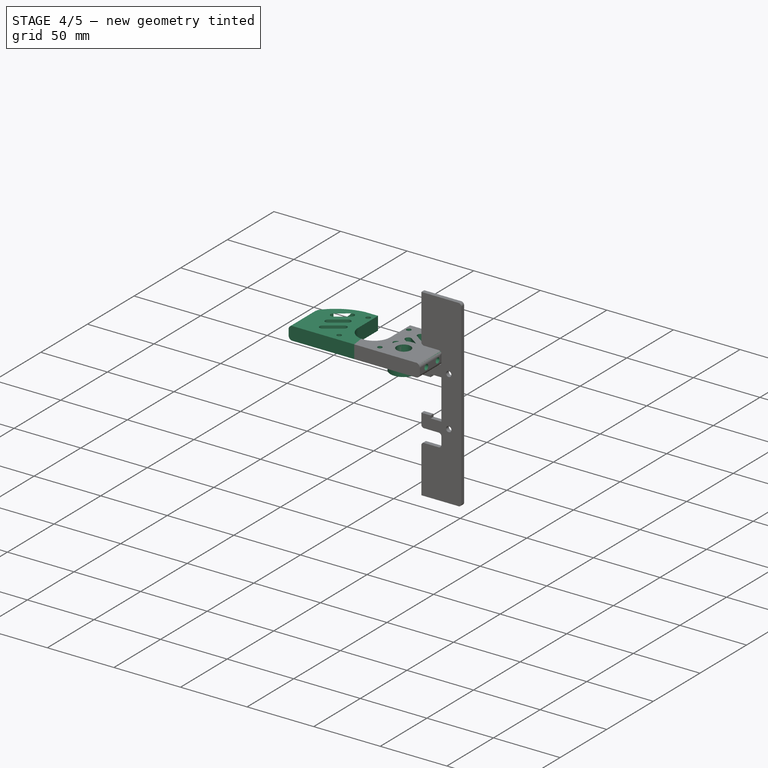
[diagram: stage 4 of 5 — iso view after this stage's code; geometry added in this stage tinted green]
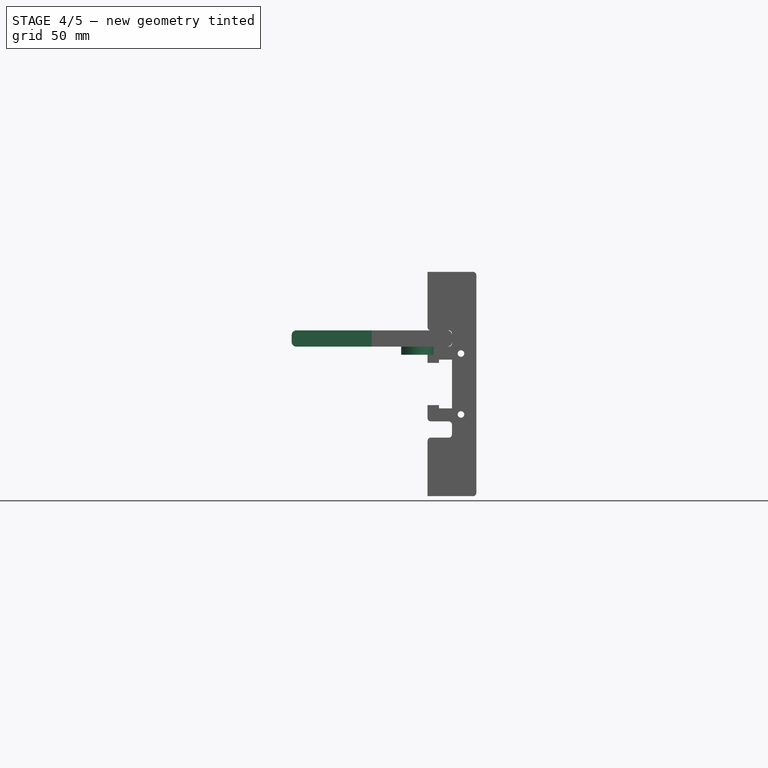
[diagram: stage 4 of 5 — front view after this stage's code; geometry added in this stage tinted green]
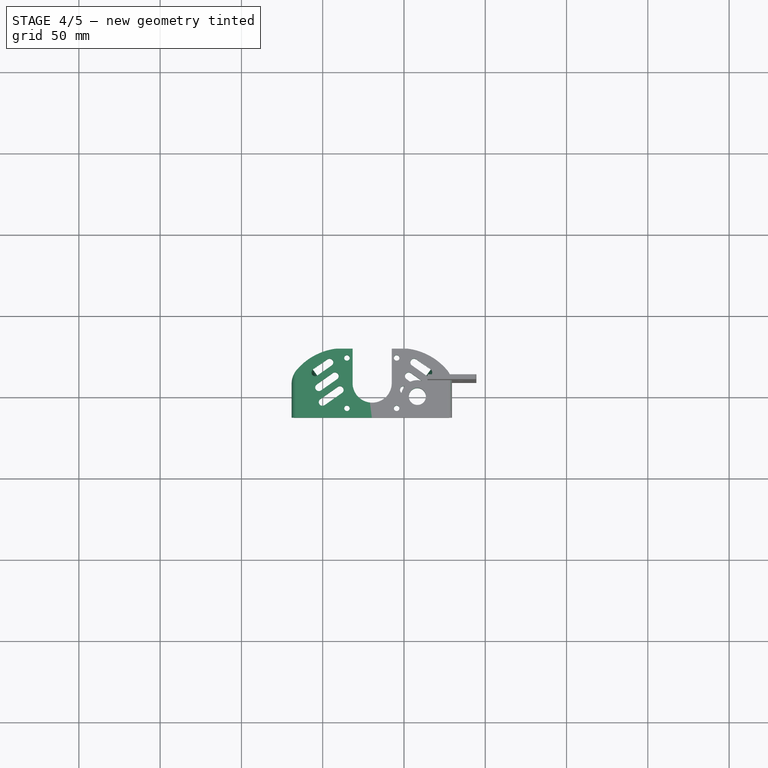
[diagram: stage 4 of 5 — top view after this stage's code; geometry added in this stage tinted green]
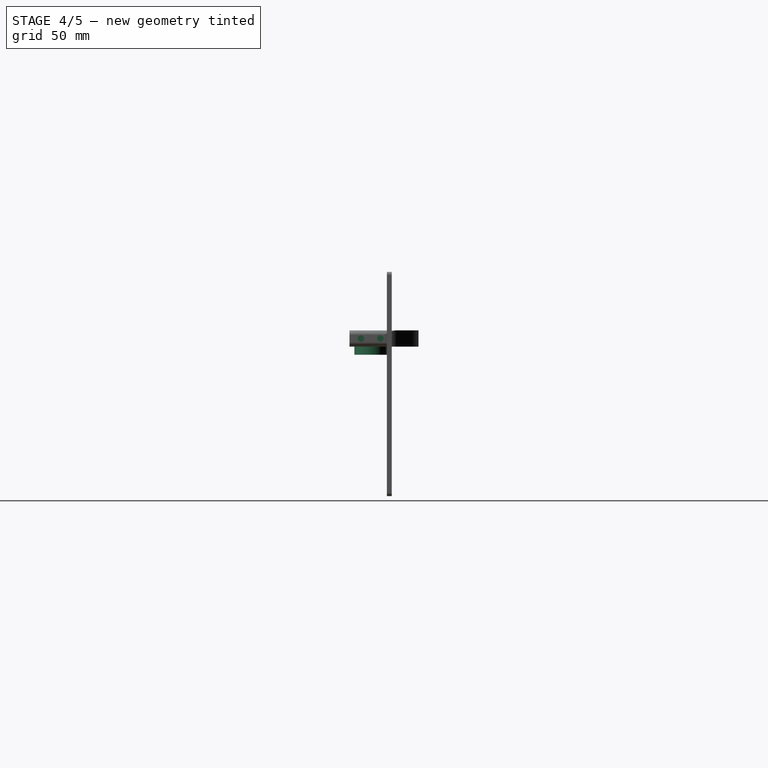
[diagram: stage 4 of 5 — right view after this stage's code; geometry added in this stage tinted green]
FEATURE [Sketcher::SketchObject] Sketch011
  ExternalGeometry = -> [ShapeBinder002]
  FullyConstrained = true
  MapMode = 5
  Placement = pos=(129.5,0,0) rot=(0.57735,0.57735,0.57735;2.0944rad)
  Support = -> [Pad003]
  sketch-geometry (2):
    g0: Circle CenterX=-7 CenterY=303 CenterZ=0 NormalX=0 NormalY=0 NormalZ=1 AngleXU=0 Radius=2
    g1: Circle CenterX=5 CenterY=303 CenterZ=0 NormalX=0 NormalY=0 NormalZ=1 AngleXU=0 Radius=2
  constraints (4):
    c: Coincident(g0,g-3)
    c: Coincident(g1,g-4)
    c: Equal(g0,g1)
    c: Radius(g0) = 2
FEATURE [PartDesign::Pocket] Pocket008
  BaseFeature = -> Pad003
  Direction = (1,1,1)
  Length = 10
  Length2 = 100
  Profile = -> Sketch011
  Type = 0
FEATURE [Sketcher::SketchObject] Sketch012
  ExternalGeometry = -> [ShapeBinder]
  FullyConstrained = false
  MapMode = 5
  Placement = pos=(0,0,308) rot=(0,0,1;0rad)
  Support = -> [Pocket008]
  sketch-geometry (6):
    g0: Circle CenterX=95.491 CenterY=22.709 CenterZ=0 NormalX=0 NormalY=0 NormalZ=1 AngleXU=0 Radius=1.7
    g1: Circle CenterX=95.491 CenterY=-8.291 CenterZ=0 NormalX=0 NormalY=0 NormalZ=1 AngleXU=0 Radius=1.7
    g2: ArcOfCircle CenterX=79.991 CenterY=7.209 CenterZ=0 NormalX=0 NormalY=0 NormalZ=1 AngleXU=0 Radius=12.0452 StartAngle=3.14159 EndAngle=6.28319
    g3: ArcOfCircle CenterX=79.991 CenterY=33.1036 CenterZ=0 NormalX=0 NormalY=0 NormalZ=1 AngleXU=0 Radius=12.0452 StartAngle=0 EndAngle=3.14159
    g4: LineSegment StartX=92.0362 StartY=7.209 StartZ=0 EndX=92.0362 EndY=33.1036 EndZ=0
    g5: LineSegment StartX=67.9458 StartY=33.1036 StartZ=0 EndX=67.9458 EndY=7.209 EndZ=0
  constraints (11):
    c: Coincident(g0,g-4)
    c: Coincident(g1,g-5)
    c: Equal(g1,g0)
    c: Radius(g0) = 1.7
    c: Tangent(g2,g4) = -1.5708
    c: Tangent(g4,g3) = -1.5708
    c: Tangent(g3,g5) = -1.5708
    c: Tangent(g5,g2) = -1.5708
    c: Equal(g2,g3)
    c: Coincident(g2,g-3)
    c: Vertical(g4)
FEATURE [PartDesign::Pocket] Pocket009
  BaseFeature = -> Pocket008
  Direction = (1,1,1)
  Length = 5
  Length2 = 100
  Profile = -> Sketch012
  Type = 1
FEATURE [Sketcher::SketchObject] Sketch013
  FullyConstrained = false
  MapMode = 5
  Placement = pos=(0,0,298) rot=(1,0,0;3.14159rad)
  Support = -> [Pocket009]
  sketch-geometry (12):
    g0: ArcOfCircle CenterX=99.8196 CenterY=-3.04126 CenterZ=0 NormalX=0 NormalY=0 NormalZ=1 AngleXU=0 Radius=2.28965 StartAngle=2.18314 EndAngle=5.32473
    g1: ArcOfCircle CenterX=110.542 CenterY=4.49036 CenterZ=0 NormalX=0 NormalY=0 NormalZ=1 AngleXU=0 Radius=2.28965 StartAngle=5.32473 EndAngle=8.46632
    g2: LineSegment StartX=101.136 StartY=-4.91489 StartZ=0 EndX=111.858 EndY=2.61672 EndZ=0
    g3: LineSegment StartX=109.226 StartY=6.36399 StartZ=0 EndX=98.5035 EndY=-1.16762 EndZ=0
    g4: ArcOfCircle CenterX=102.901 CenterY=-11.4925 CenterZ=0 NormalX=0 NormalY=0 NormalZ=1 AngleXU=0 Radius=2.28965 StartAngle=2.18314 EndAngle=5.32473
    g5: ArcOfCircle CenterX=112.742 CenterY=-4.58026 CenterZ=0 NormalX=0 NormalY=0 NormalZ=1 AngleXU=0 Radius=2.28965 StartAngle=5.32473 EndAngle=8.46632
    g6: LineSegment StartX=104.217 StartY=-13.3661 StartZ=0 EndX=114.058 EndY=-6.45389 EndZ=0
    g7: LineSegment StartX=111.426 StartY=-2.70662 StartZ=0 EndX=101.585 EndY=-9.61885 EndZ=0
    g8: ArcOfCircle CenterX=106.204 CenterY=-19.9542 CenterZ=0 NormalX=0 NormalY=0 NormalZ=1 AngleXU=0 Radius=2.28965 StartAngle=2.18314 EndAngle=5.32473
    g9: ArcOfCircle CenterX=115.071 CenterY=-13.7264 CenterZ=0 NormalX=0 NormalY=0 NormalZ=1 AngleXU=0 Radius=2.28965 StartAngle=5.32473 EndAngle=8.46632
    g10: LineSegment StartX=107.52 StartY=-21.8279 StartZ=0 EndX=116.387 EndY=-15.6 EndZ=0
    g11: LineSegment StartX=113.755 StartY=-11.8528 StartZ=0 EndX=104.888 EndY=-18.0806 EndZ=0
  constraints (19):
    c: Tangent(g0,g2) = -1.5708
    c: Tangent(g2,g1) = -1.5708
    c: Tangent(g1,g3) = -1.5708
    c: Tangent(g3,g0) = -1.5708
    c: Equal(g0,g1)
    c: Tangent(g4,g6) = -1.5708
    c: Tangent(g6,g5) = -1.5708
    c: Tangent(g5,g7) = -1.5708
    c: Tangent(g7,g4) = -1.5708
    c: Equal(g4,g5)
    c: Tangent(g8,g10) = -1.5708
    c: Tangent(g10,g9) = -1.5708
    c: Tangent(g9,g11) = -1.5708
    c: Tangent(g11,g8) = -1.5708
    c: Equal(g8,g9)
    c: Equal(g9,g5)
    c: Equal(g5,g1)
    c: Parallel(g2,g7)
    c: Parallel(g7,g11)
FEATURE [PartDesign::Pocket] Pocket010
  BaseFeature = -> Pocket009
  Direction = (1,1,1)
  Length = 5
  Length2 = 100
  Profile = -> Sketch013
  Type = 1
FEATURE [Sketcher::SketchObject] Sketch014
  ExternalGeometry = -> [Pocket010]
  FullyConstrained = false
  MapMode = 5
  Placement = pos=(0,-14,0) rot=(1,0,0;1.5708rad)
  Support = -> [Pocket010]
  sketch-geometry (9):
    g0: ArcOfCircle CenterX=126.645 CenterY=305.145 CenterZ=0 NormalX=0 NormalY=0 NormalZ=1 AngleXU=0 Radius=2.85484 StartAngle=-3.6e-15 EndAngle=1.5708
    g1: ArcOfCircle CenterX=126.645 CenterY=300.855 CenterZ=0 NormalX=0 NormalY=0 NormalZ=1 AngleXU=0 Radius=2.85484 StartAngle=4.71239 EndAngle=6.28319
    g2: LineSegment StartX=129.5 StartY=300.855 StartZ=0 EndX=129.5 EndY=305.145 EndZ=0
    g3: LineSegment StartX=126.645 StartY=308 StartZ=0 EndX=126.175 EndY=308 EndZ=0
    g4: LineSegment StartX=126.175 StartY=308 StartZ=0 EndX=126.175 EndY=311.997 EndZ=0
    g5: LineSegment StartX=126.175 StartY=311.997 StartZ=0 EndX=135.72 EndY=311.997 EndZ=0
    g6: LineSegment StartX=135.72 StartY=311.997 StartZ=0 EndX=135.72 EndY=293.883 EndZ=0
    g7: LineSegment StartX=135.72 StartY=293.883 StartZ=0 EndX=126.645 EndY=293.883 EndZ=0
    g8: LineSegment StartX=126.645 StartY=293.883 StartZ=0 EndX=126.645 EndY=298 EndZ=0
  constraints (23):
    c: PointOnObject(g0,g-3)
    c: PointOnObject(g0,g-4)
    c: PointOnObject(g1,g-5)
    c: PointOnObject(g1,g-3)
    c: Horizontal(g0,g0)
    c: Vertical(g0,g0)
    c: Vertical(g1,g1)
    c: Horizontal(g1,g1)
    c: Equal(g1,g0)
    c: Coincident(g2,g1)
    c: Coincident(g2,g0)
    c: Tangent(g0,g3) = -1.5708
    c: Coincident(g3,g4)
    c: Vertical(g4)
    c: Coincident(g4,g5)
    c: Coincident(g5,g6)
    c: Coincident(g6,g7)
    c: Coincident(g7,g8)
    c: Coincident(g8,g1)
    c: Vertical(g8)
    c: Vertical(g6)
    c: Horizontal(g5)
    c: Horizontal(g7)
FEATURE [PartDesign::Pocket] Pocket011
  BaseFeature = -> Pocket010
  Direction = (1,1,1)
  Length = 5
  Length2 = 100
  Profile = -> Sketch014
  Type = 1
FEATURE [PartDesign::Mirrored] Mirrored
  BaseFeature = -> Pocket011
  MirrorPlane = -> Pocket011 [Face1]
  Originals = -> [Pad003,Pocket008,Pocket009,Pocket010,Pocket011]
FEATURE [PartDesign::ShapeBinder] ShapeBinder003
  Support = -> [Pocket012]
  TraceSupport = false
FEATURE [PartDesign::Plane] DatumPlane001
  AttachmentOffset = pos=(0,0,0) rot=(1,0,0;1.5708rad)
  Length = 80.0724
  MapMode = 45
  Placement = pos=(80.4187,17.8135,303) rot=(0.57735,0.57735,0.57735;2.0944rad)
  ResizeMode = 0
  Support = -> [Mirrored]
  Width = 359.154
FEATURE [Sketcher::SketchObject] Sketch016
  AttachmentOffset = pos=(0,0,5) rot=(0,0,1;0rad)
  ExternalGeometry = -> [ShapeBinder003]
  FullyConstrained = true
  MapMode = 5
  Placement = pos=(0,6.45e-14,293) rot=(0,0,1;0rad)
  Support = -> [ShapeBinder003]
  sketch-geometry (2):
    g0: Circle CenterX=108.25 CenterY=-1 CenterZ=0 NormalX=0 NormalY=0 NormalZ=1 AngleXU=0 Radius=5.25
    g1: Circle CenterX=108.25 CenterY=-1 CenterZ=0 NormalX=0 NormalY=0 NormalZ=1 AngleXU=0 Radius=10
  constraints (4):
    c: Coincident(g0,g-3)
    c: Diameter(g0) = 10.5
    c: Coincident(g1,g-3)
    c: Diameter(g1) = 20
FEATURE [PartDesign::Pad] Pad004
  BaseFeature = -> Mirrored
  Direction = (0,2e-16,1)
  Length = 15
  Length2 = 100
  Profile = -> Sketch016
  Type = 0
FEATURE [PartDesign::Pocket] Pocket013
  BaseFeature = -> Pad004
  Direction = (1,1,1)
  Length = 5
  Length2 = 100
  Profile = -> Pad004 [Face54,Face51]
  Type = 1
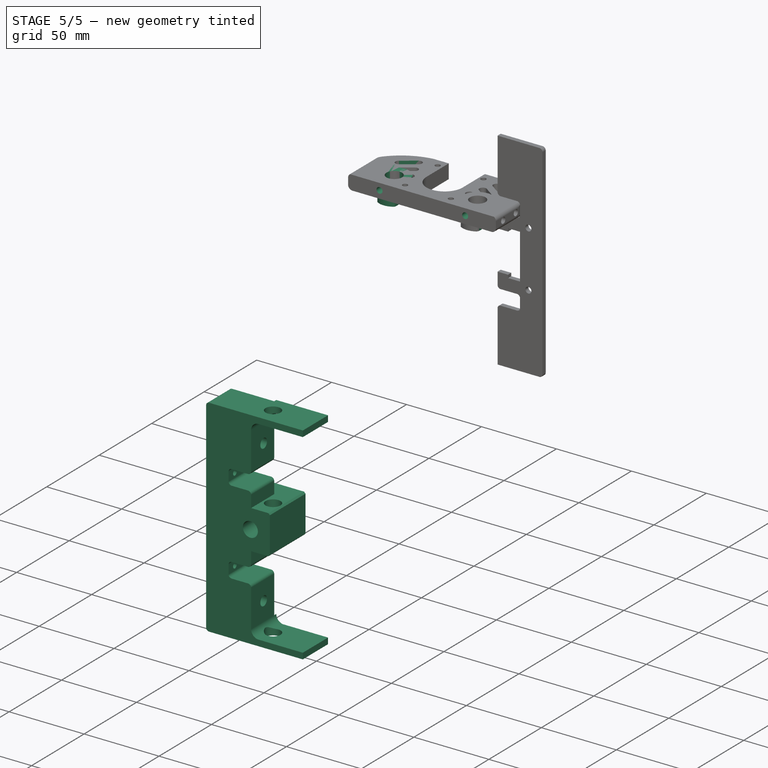
[diagram: stage 5 of 5 — iso view after this stage's code; geometry added in this stage tinted green]
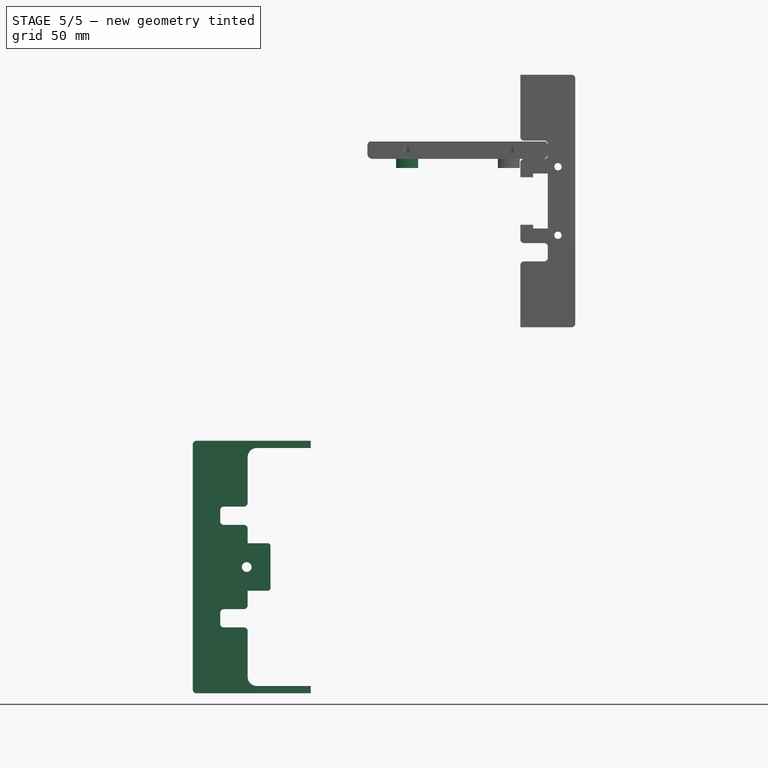
[diagram: stage 5 of 5 — front view after this stage's code; geometry added in this stage tinted green]
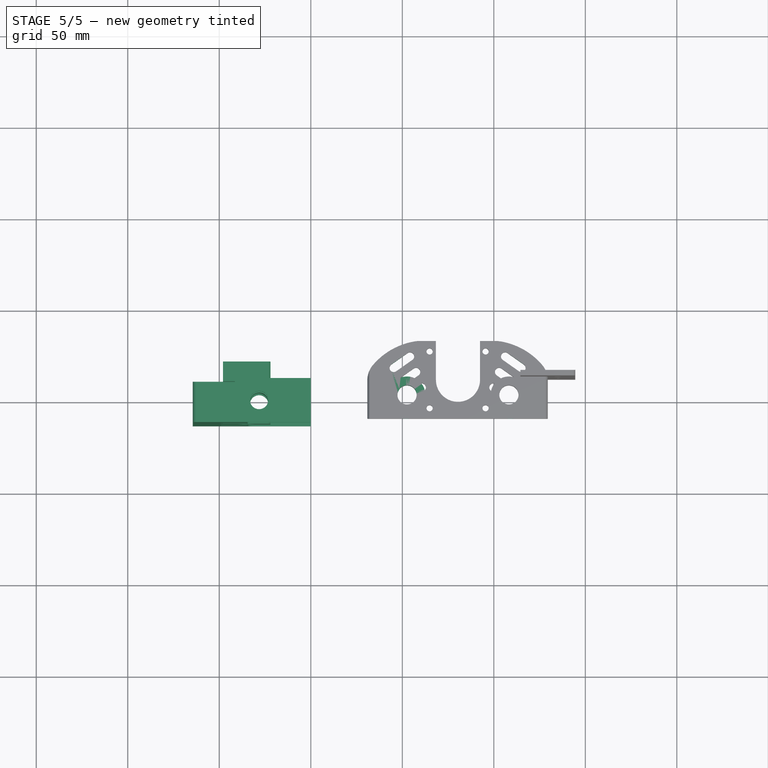
[diagram: stage 5 of 5 — top view after this stage's code; geometry added in this stage tinted green]
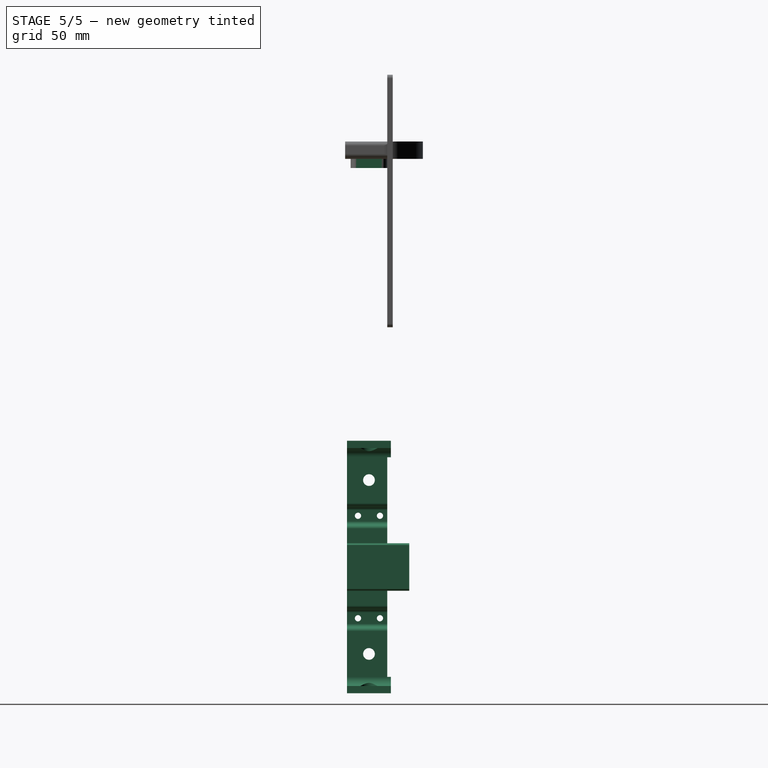
[diagram: stage 5 of 5 — right view after this stage's code; geometry added in this stage tinted green]
FEATURE [PartDesign::Body] Body
  Group = -> [Binder,Sketch,DatumPlane,Sketch001,Pad,Sketch002,Pad001,Sketch003,Pocket,Pocket001,Fillet,Fillet001,Sketch004,Pad002,Sketch005,Pocket002,Pocket003,Sketch006,Hole,Pocket004,Sketch007,Pocket005,Sketch008,Hole001,Chamfer,Pocket006,Fillet002,Sketch009,Pocket007,Sketch015,Pocket012]
  Origin = -> Origin
  Placement = pos=(-80,0,-200) rot=(0,0,1;0rad)
  Tip = -> Pocket012
FEATURE [Part::Mirroring] Part__Mirroring  label="Body (Mirror #1)"
  Base = (0,0,0)
  Normal = (1,0,0)
  Source = -> Body
FEATURE [Sketcher::SketchObject] Sketch017
  ExternalGeometry = -> [Pocket013]
  FullyConstrained = true
  MapMode = 5
  Placement = pos=(0,-14,0) rot=(1,0,0;1.5708rad)
  Support = -> [Pocket013]
  sketch-geometry (1):
    g0: Circle CenterX=108.989 CenterY=303 CenterZ=0 NormalX=0 NormalY=0 NormalZ=1 AngleXU=0 Radius=2
  constraints (3):
    c: Diameter(g0) = 4
    c: PointOnObject(g0,g-3)
    c: DistanceY(g0,g-3) = 5
FEATURE [PartDesign::Pocket] Pocket014
  BaseFeature = -> Pocket013
  Direction = (1,1,1)
  Length = 12
  Length2 = 100
  Profile = -> Sketch017
  Type = 0
FEATURE [PartDesign::Mirrored] Mirrored001
  BaseFeature = -> Pocket014
  MirrorPlane = -> DatumPlane001
  Originals = -> [Pad004,Pocket014]
FEATURE [PartDesign::Pocket] Pocket015
  BaseFeature = -> Mirrored001
  Direction = (1,1,1)
  Length = 5
  Length2 = 100
  Profile = -> Mirrored001 [Face68,Face70]
  Type = 1
FEATURE [Sketcher::SketchObject] Sketch018
  ExternalGeometry = -> [Pocket015]
  FullyConstrained = false
  MapMode = 5
  Placement = pos=(0,-14,0) rot=(1,0,0;1.5708rad)
  Support = -> [Pocket015]
  sketch-geometry (4):
    g0: LineSegment StartX=25.2381 StartY=314.231 StartZ=0 EndX=134.237 EndY=314.231 EndZ=0
    g1: LineSegment StartX=134.237 StartY=314.231 StartZ=0 EndX=134.237 EndY=307.5 EndZ=0
    g2: LineSegment StartX=134.237 StartY=307.5 StartZ=0 EndX=25.2381 EndY=307.5 EndZ=0
    g3: LineSegment StartX=25.2381 StartY=307.5 StartZ=0 EndX=25.2381 EndY=314.231 EndZ=0
  constraints (9):
    c: Coincident(g0,g1)
    c: Coincident(g1,g2)
    c: Coincident(g2,g3)
    c: Coincident(g3,g0)
    c: Horizontal(g0)
    c: Horizontal(g2)
    c: Vertical(g1)
    c: Vertical(g3)
    c: Distance(g-3,g2) = 0.5
FEATURE [PartDesign::Pocket] Pocket016
  BaseFeature = -> Pocket015
  Direction = (1,1,1)
  Length = 5
  Length2 = 100
  Profile = -> Sketch018
  Type = 1
FEATURE [Sketcher::SketchObject] Sketch019
  AttachmentOffset = pos=(0,0,10) rot=(0,0,1;0rad)
  ExternalGeometry = -> [ShapeBinder]
  FullyConstrained = false
  MapMode = 5
  Placement = pos=(0,0,298) rot=(1,0,0;3.14159rad)
  Support = -> [ShapeBinder]
  sketch-geometry (8):
    g0: LineSegment StartX=102.2 StartY=18.0809 StartZ=0 EndX=80.5344 EndY=18.0809 EndZ=0
    g1: LineSegment StartX=80.5344 StartY=18.0809 StartZ=0 EndX=80.5344 EndY=-34.2902 EndZ=0
    g2: LineSegment StartX=80.5344 StartY=-34.2902 StartZ=0 EndX=102.2 EndY=-34.2902 EndZ=0
    g3: LineSegment StartX=102.2 StartY=-34.2902 StartZ=0 EndX=102.2 EndY=18.0809 EndZ=0
    g4: LineSegment StartX=114.2 StartY=18.369 StartZ=0 EndX=132.354 EndY=18.369 EndZ=0
    g5: LineSegment StartX=132.354 StartY=18.369 StartZ=0 EndX=132.354 EndY=-34.967 EndZ=0
    g6: LineSegment StartX=132.354 StartY=-34.967 StartZ=0 EndX=114.2 EndY=-34.967 EndZ=0
    g7: LineSegment StartX=114.2 StartY=-34.967 StartZ=0 EndX=114.2 EndY=18.369 EndZ=0
  constraints (18):
    c: Coincident(g0,g1)
    c: Coincident(g1,g2)
    c: Coincident(g2,g3)
    c: Coincident(g3,g0)
    c: Horizontal(g0)
    c: Horizontal(g2)
    c: Vertical(g1)
    c: Vertical(g3)
    c: Distance(g-3,g3) = 1
    c: Coincident(g4,g5)
    c: Coincident(g5,g6)
    c: Coincident(g6,g7)
    c: Coincident(g7,g4)
    c: Horizontal(g4)
    c: Horizontal(g6)
    c: Vertical(g5)
    c: Vertical(g7)
    c: DistanceX(g0,g4) = 12
FEATURE [PartDesign::Pocket] Pocket017
  BaseFeature = -> Pocket016
  Direction = (1,1,1)
  Length = 5
  Length2 = 100
  Profile = -> Sketch019
  Reversed = true
  Type = 1
FEATURE [PartDesign::Mirrored] Mirrored002
  BaseFeature = -> Pocket017
  MirrorPlane = -> DatumPlane001
  Originals = -> [Pocket017]
FEATURE [PartDesign::Fillet] Fillet003
  Base = -> Mirrored002 [Edge249,Edge247,Edge240,Edge242,Edge159,Edge155,Edge133,Edge137]
  BaseFeature = -> Mirrored002
  Radius = 2
  SupportTransform = false
  UseAllEdges = false
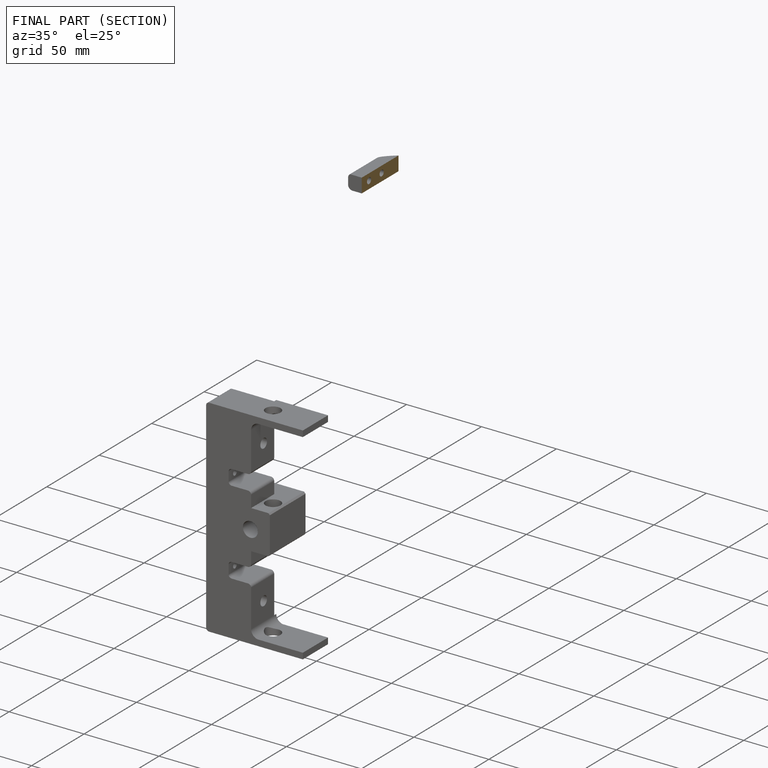
[diagram: finished part — half-section view (interior)]
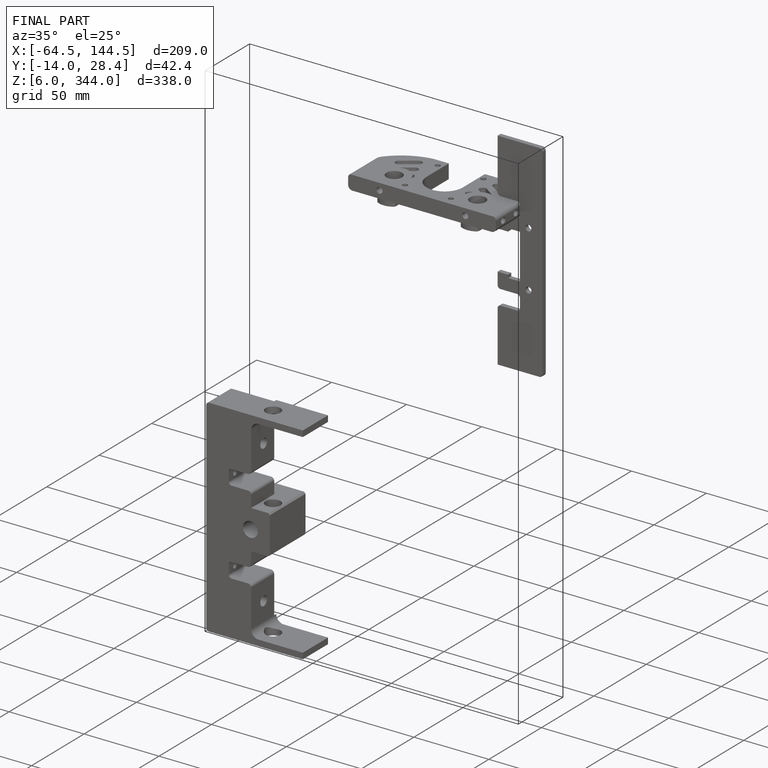
[diagram: finished part — iso view with bounding-box wireframe]
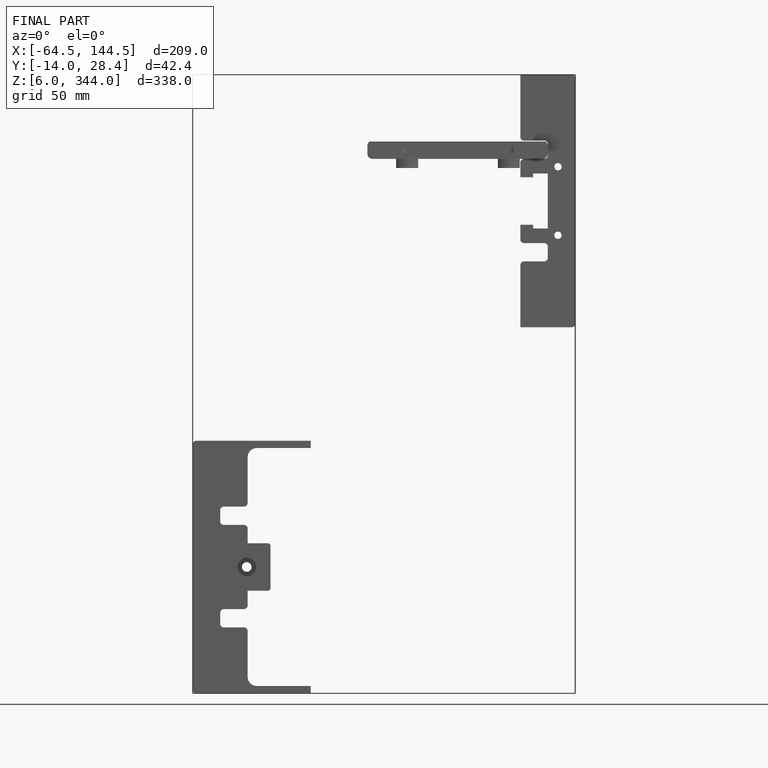
[diagram: finished part — front view with bounding-box wireframe]
